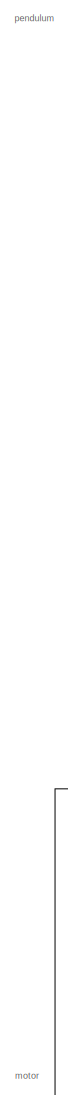
[diagram: root canvas - part 1/3, left side, full height]
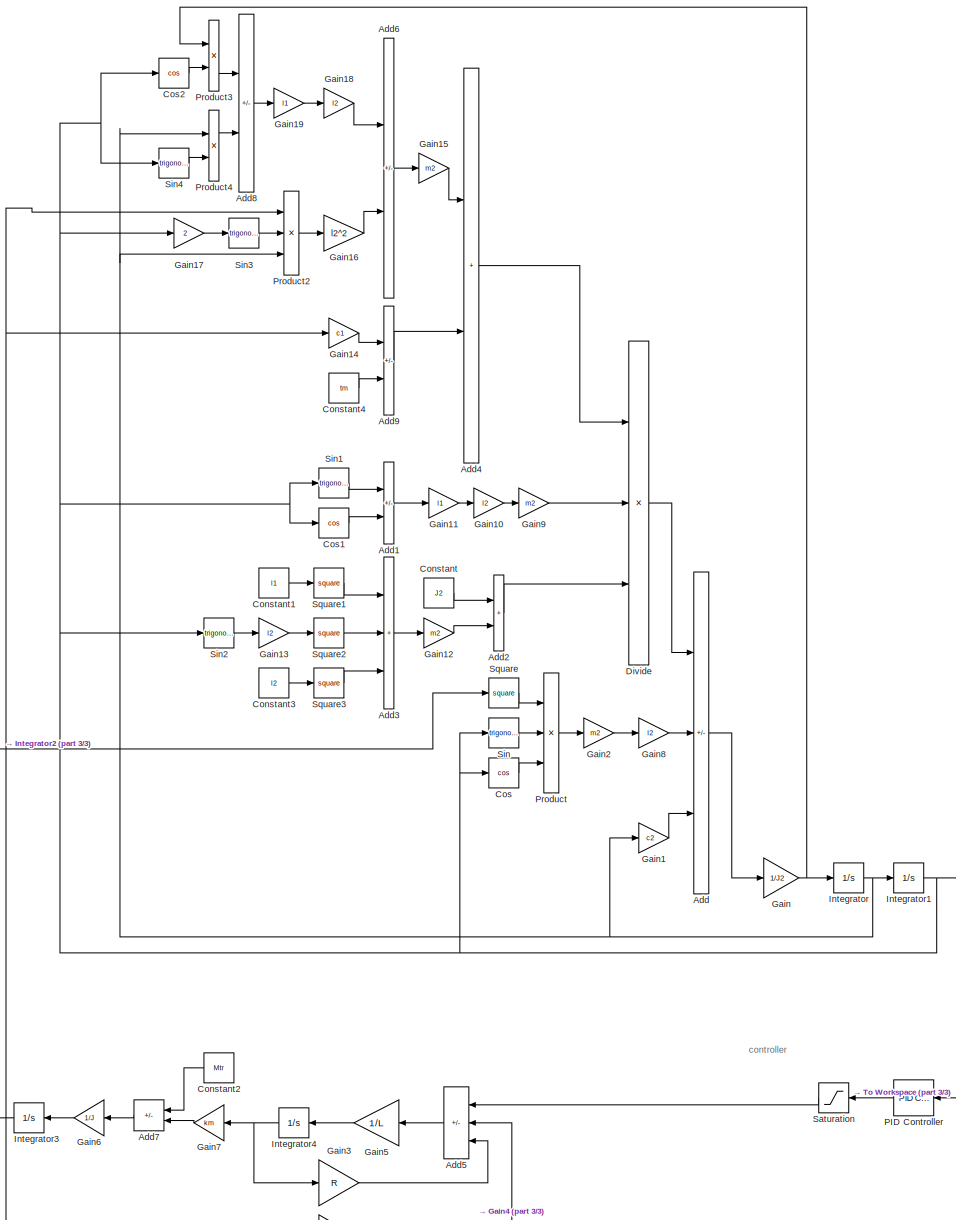
[diagram: root canvas - part 2/3, most of the canvas]
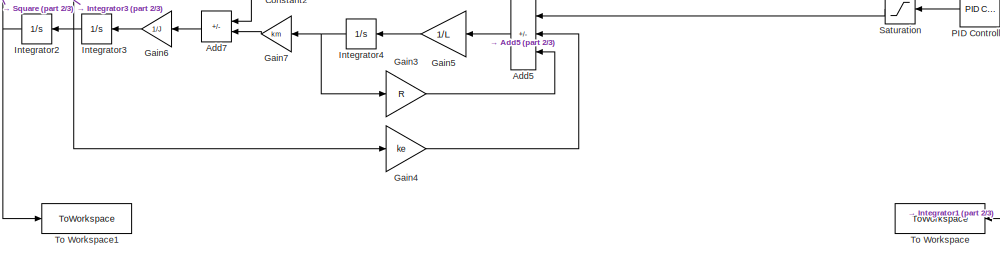
[diagram: root canvas - part 3/3, full width, bottom band]
MODEL slx_68d688c49089
KIND model
CONFIG AbsTol = 2
CONFIG EnableMultiTasking = off
CONFIG FixedStep = 1
CONFIG MaxStep = 0.09
CONFIG MinStep = 0.00001
CONFIG RelTol = 1e-10
CONFIG SampleTimeConstraint = Unconstrained
CONFIG SolverName = VariableStepAuto
CONFIG StartTime = 0.0
CONFIG StopTime = 10
BLOCK [Sum] Add
  IconShape = rectangular
  Inputs = ++-
BLOCK [Sum] Add1
  IconShape = rectangular
  Inputs = -+
BLOCK [Sum] Add2
  IconShape = rectangular
BLOCK [Sum] Add3
  IconShape = rectangular
  Inputs = +++
BLOCK [Sum] Add4
  IconShape = rectangular
BLOCK [Sum] Add5
  IconShape = rectangular
  Inputs = +--
BLOCK [Sum] Add6
  IconShape = rectangular
  Inputs = +-
BLOCK [Sum] Add7
  IconShape = rectangular
  Inputs = -+
BLOCK [Sum] Add8
  IconShape = rectangular
  Inputs = +-
BLOCK [Sum] Add9
  IconShape = rectangular
  Inputs = -+
BLOCK [Constant] Constant
  Value = J2
BLOCK [Constant] Constant1
  Value = l1
BLOCK [Constant] Constant2
  Value = Mtr
BLOCK [Constant] Constant3
  Value = l2
BLOCK [Constant] Constant4
  Value = tm
BLOCK [Trigonometry] Cos
  Operator = cos
BLOCK [Trigonometry] Cos1
  Operator = cos
BLOCK [Trigonometry] Cos2
  Operator = cos
BLOCK [Product] Divide
  Inputs = **/
BLOCK [Gain] Gain
  Gain = 1/J2
BLOCK [Gain] Gain1
  Gain = c2
BLOCK [Gain] Gain10
  Gain = l2
BLOCK [Gain] Gain11
  Gain = l1
BLOCK [Gain] Gain12
  Gain = m2
BLOCK [Gain] Gain13
  Gain = l2
BLOCK [Gain] Gain14
  Gain = c1
BLOCK [Gain] Gain15
  Gain = m2
BLOCK [Gain] Gain16
  Gain = l2^2
BLOCK [Gain] Gain17
  Gain = 2
BLOCK [Gain] Gain18
  Gain = l2
BLOCK [Gain] Gain19
  Gain = l1
BLOCK [Gain] Gain2
  Gain = m2
BLOCK [Gain] Gain3
  Gain = R
BLOCK [Gain] Gain4
  Gain = ke
BLOCK [Gain] Gain5
  Gain = 1/L
BLOCK [Gain] Gain6
  Gain = 1/J
BLOCK [Gain] Gain7
  Gain = km
BLOCK [Gain] Gain8
  Gain = l2
BLOCK [Gain] Gain9
  Gain = m2
BLOCK [Integrator] Integrator
BLOCK [Integrator] Integrator1
  InitialCondition = start
BLOCK [Integrator] Integrator2
BLOCK [Integrator] Integrator3
BLOCK [Integrator] Integrator4
BLOCK [Reference] PID Controller  REF=slpidlib/PID Controller
  LibrarySourceBlock = simulink/Continuous/PID Controller
  NameLocation = top
  SourceBlock = slpidlib/PID Controller
  SourceType = PID 1dof
BLOCK [Product] Product
  Inputs = 3
BLOCK [Product] Product2
  Inputs = 3
BLOCK [Product] Product3
BLOCK [Product] Product4
BLOCK [Saturate] Saturation
  LowerLimit = -2500
  NameLocation = top
  UpperLimit = 2500
BLOCK [Trigonometry] Sin
BLOCK [Trigonometry] Sin1
BLOCK [Trigonometry] Sin2
BLOCK [Trigonometry] Sin3
BLOCK [Trigonometry] Sin4
BLOCK [Math] Square
  Operator = square
BLOCK [Math] Square1
  Operator = square
BLOCK [Math] Square2
  Operator = square
BLOCK [Math] Square3
  Operator = square
BLOCK [ToWorkspace] To Workspace
  FixptAsFi = on
  MaxDataPoints = inf
  SampleTime = -1
  SaveFormat = Timeseries
  VariableName = tetha
BLOCK [ToWorkspace] To Workspace1
  FixptAsFi = on
  MaxDataPoints = inf
  SampleTime = -1
  SaveFormat = Timeseries
  VariableName = motor
ANNOTATION (root): controller
ANNOTATION (root): motor
ANNOTATION (root): pendulum
LINE Add1:1 -> Gain11:1
LINE Add2:1 -> Divide:3
LINE Add3:1 -> Gain12:1
LINE Add4:1 -> Divide:1
LINE Add5:1 -> Gain5:1
LINE Add6:1 -> Gain15:1
LINE Add7:1 -> Gain6:1
LINE Add8:1 -> Gain19:1
LINE Add9:1 -> Add4:2
LINE Add:1 -> Gain:1
LINE Constant1:1 -> Square1:1
LINE Constant2:1 -> Add7:1
LINE Constant3:1 -> Square3:1
LINE Constant4:1 -> Add9:2
LINE Constant:1 -> Add2:1
LINE Cos1:1 -> Add1:2
LINE Cos2:1 -> Product3:2
LINE Cos:1 -> Product:3
LINE Divide:1 -> Add:1
LINE Gain10:1 -> Gain9:1
LINE Gain11:1 -> Gain10:1
LINE Gain12:1 -> Add2:2
LINE Gain13:1 -> Square2:1
LINE Gain14:1 -> Add9:1
LINE Gain15:1 -> Add4:1
LINE Gain16:1 -> Add6:2
LINE Gain17:1 -> Sin3:1
LINE Gain18:1 -> Add6:1
LINE Gain19:1 -> Gain18:1
LINE Gain1:1 -> Add:3
LINE Gain2:1 -> Gain8:1
LINE Gain3:1 -> Add5:3
LINE Gain4:1 -> Add5:2
LINE Gain5:1 -> Integrator4:1
LINE Gain6:1 -> Integrator3:1
LINE Gain7:1 -> Add7:2
LINE Gain8:1 -> Add:2
LINE Gain9:1 -> Divide:2
NET Gain:1 -> Integrator:1, Product3:1
NET Integrator1:1 -> Cos1:1, Cos2:1, Cos:1, Gain17:1, PID Controller:1, Sin1:1, Sin2:1, Sin4:1, Sin:1, To Workspace:1
NET Integrator2:1 -> Square:1, To Workspace1:1
NET Integrator3:1 -> Gain14:1, Gain4:1, Integrator2:1, Product2:1
NET Integrator4:1 -> Gain3:1, Gain7:1
NET Integrator:1 -> Gain1:1, Integrator1:1, Product2:3, Product4:1
LINE PID Controller:1 -> Saturation:1
LINE Product2:1 -> Gain16:1
LINE Product3:1 -> Add8:1
LINE Product4:1 -> Add8:2
LINE Product:1 -> Gain2:1
LINE Saturation:1 -> Add5:1
LINE Sin1:1 -> Add1:1
LINE Sin2:1 -> Gain13:1
LINE Sin3:1 -> Product2:2
LINE Sin4:1 -> Product4:2
LINE Sin:1 -> Product:2
LINE Square1:1 -> Add3:1
LINE Square2:1 -> Add3:2
LINE Square3:1 -> Add3:3
LINE Square:1 -> Product:1
note: NET lines group one-source signal fan-out (src -> all destinations, sorted); 1:1 wires keep LINE
